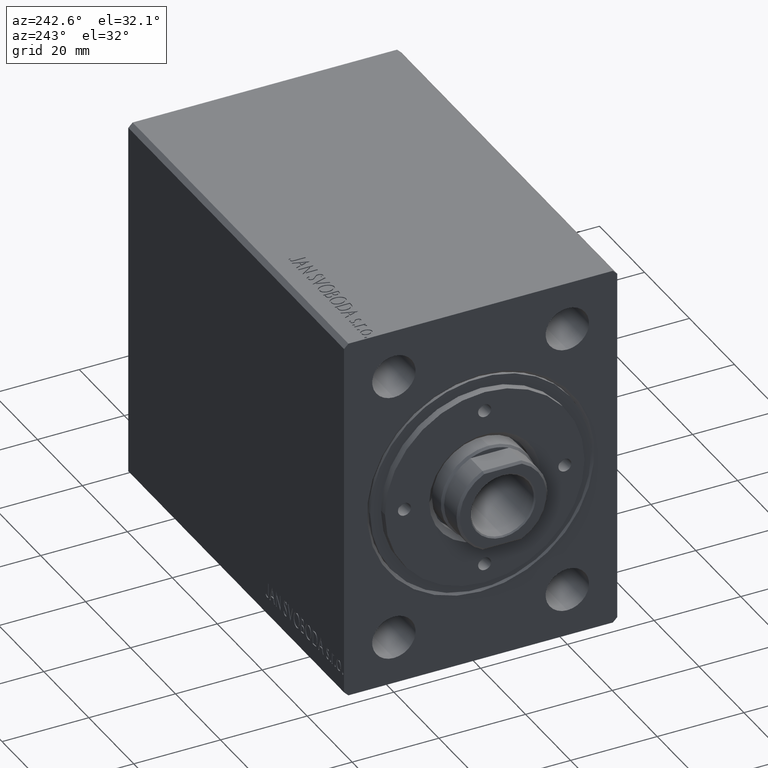
[diagram: clean part render]
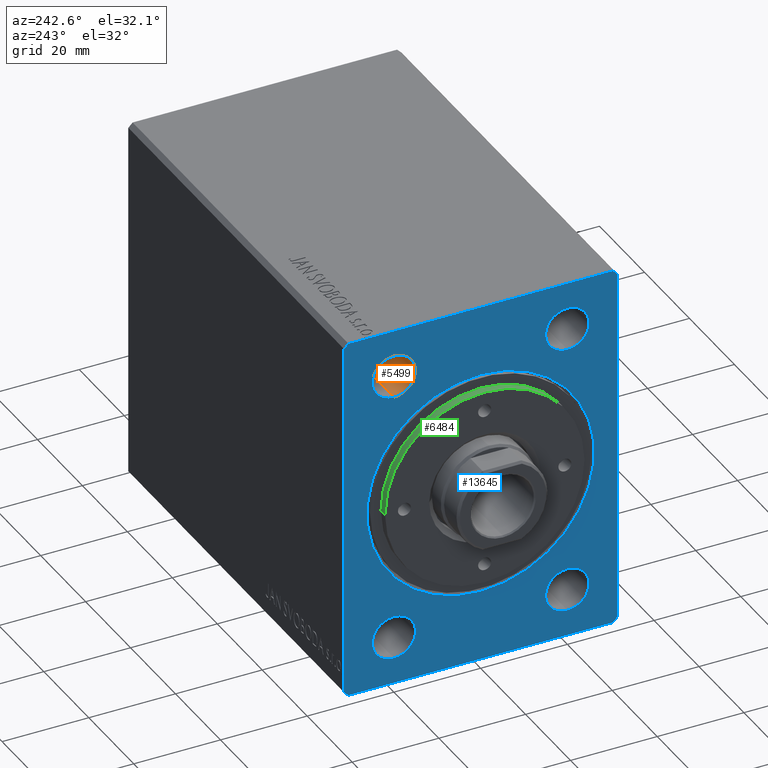
[diagram: same view with three faces highlighted in distinct colors, each labeled with its STEP entity id]
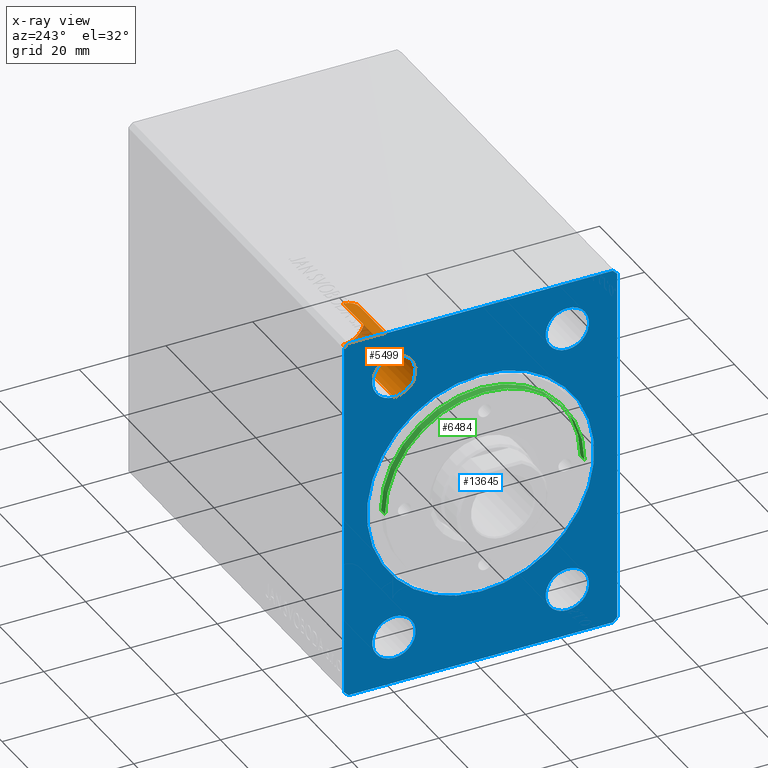
[diagram: x-ray of the same camera — body ghosted, the three highlighted faces saturated]
A machine part, auxiliary view with three faces highlighted in distinct colors.
The next image is the same camera in x-ray (body ghosted, the three faces saturated) — at least one of them is partly hidden behind the body in this view.
Their STEP definitions:

[orange] entity #5499 — the highlighted cylindrical surface (edge-blend (fillet) strip) has radius 5 mm, axis along (-1, -0, -0).
#1872 = EDGE_CURVE ( 'NONE', #37305, #3711, #41572, .T. ) ;
#2341 = EDGE_LOOP ( 'NONE', ( #42900, #39716, #16521, #27777 ) ) ;
#2380 = EDGE_CURVE ( 'NONE', #3711, #30821, #32694, .T. ) ;
#3711 = VERTEX_POINT ( 'NONE', #30739 ) ;
#5499 = ADVANCED_FACE ( 'NONE', ( #16178 ), #33328, .F. ) ;
#7325 = LINE ( 'NONE', #40727, #35598 ) ;
#8535 = DIRECTION ( 'NONE',  ( 0.000000000000000000, 0.000000000000000000, 1.000000000000000000 ) ) ;
#9941 = DIRECTION ( 'NONE',  ( 0.000000000000000000, 0.000000000000000000, 1.000000000000000000 ) ) ;
#11769 = CARTESIAN_POINT ( 'NONE',  ( 0.000000000000000000, 19.99999999999999645, 36.50000000000000000 ) ) ;
#11876 = CARTESIAN_POINT ( 'NONE',  ( 22.67000000000000171, 19.99999999999999645, 31.50000000000000000 ) ) ;
#12832 = DIRECTION ( 'NONE',  ( -1.000000000000000000, -0.000000000000000000, -0.000000000000000000 ) ) ;
#15894 = EDGE_CURVE ( 'NONE', #37305, #31997, #7325, .T. ) ;
#16178 = FACE_OUTER_BOUND ( 'NONE', #2341, .T. ) ;
#16521 = ORIENTED_EDGE ( 'NONE', *, *, #32907, .T. ) ;
#16629 = DIRECTION ( 'NONE',  ( 0.000000000000000000, 0.000000000000000000, 1.000000000000000000 ) ) ;
#17854 = CARTESIAN_POINT ( 'NONE',  ( 1.224646799147350495E-16, 19.99999999999999645, 36.50000000000000000 ) ) ;
#18898 = AXIS2_PLACEMENT_3D ( 'NONE', #19298, #12832, #9941 ) ;
#19298 = CARTESIAN_POINT ( 'NONE',  ( 0.000000000000000000, 19.99999999999999645, 31.50000000000000000 ) ) ;
#21799 = DIRECTION ( 'NONE',  ( -1.000000000000000000, -0.000000000000000000, -0.000000000000000000 ) ) ;
#22518 = AXIS2_PLACEMENT_3D ( 'NONE', #35592, #42509, #16629 ) ;
#25576 = CARTESIAN_POINT ( 'NONE',  ( 22.67000000000000171, 19.99999999999999645, 26.50000000000000711 ) ) ;
#25674 = DIRECTION ( 'NONE',  ( -1.000000000000000000, -0.000000000000000000, -0.000000000000000000 ) ) ;
#27371 = DIRECTION ( 'NONE',  ( -1.000000000000000000, -0.000000000000000000, -0.000000000000000000 ) ) ;
#27777 = ORIENTED_EDGE ( 'NONE', *, *, #2380, .F. ) ;
#30739 = CARTESIAN_POINT ( 'NONE',  ( 22.67000000000000171, 19.99999999999999645, 36.49999999999999289 ) ) ;
#30821 = VERTEX_POINT ( 'NONE', #17854 ) ;
#31997 = VERTEX_POINT ( 'NONE', #36274 ) ;
#32694 = LINE ( 'NONE', #11769, #35176 ) ;
#32907 = EDGE_CURVE ( 'NONE', #31997, #30821, #38184, .T. ) ;
#33328 = CYLINDRICAL_SURFACE ( 'NONE', #18898, 4.999999999999997335 ) ;
#35176 = VECTOR ( 'NONE', #21799, 1000.000000000000000 ) ;
#35592 = CARTESIAN_POINT ( 'NONE',  ( 1.224646799147350495E-16, 19.99999999999999645, 31.50000000000000000 ) ) ;
#35598 = VECTOR ( 'NONE', #27371, 1000.000000000000000 ) ;
#36274 = CARTESIAN_POINT ( 'NONE',  ( 1.224646799147350495E-16, 19.99999999999999645, 26.50000000000000355 ) ) ;
#37305 = VERTEX_POINT ( 'NONE', #25576 ) ;
#38184 = CIRCLE ( 'NONE', #22518, 4.999999999999997335 ) ;
#39716 = ORIENTED_EDGE ( 'NONE', *, *, #15894, .T. ) ;
#40727 = CARTESIAN_POINT ( 'NONE',  ( 0.000000000000000000, 19.99999999999999645, 26.50000000000000355 ) ) ;
#41538 = AXIS2_PLACEMENT_3D ( 'NONE', #11876, #25674, #8535 ) ;
#41572 = CIRCLE ( 'NONE', #41538, 4.999999999999990230 ) ;
#42509 = DIRECTION ( 'NONE',  ( -1.000000000000000000, -0.000000000000000000, -0.000000000000000000 ) ) ;
#42900 = ORIENTED_EDGE ( 'NONE', *, *, #1872, .F. ) ;

[blue] entity #13645 — the highlighted planar face has unit normal (1, 0, 0).
#4 = AXIS2_PLACEMENT_3D ( 'NONE', #10274, #24746, #7818 ) ;
#1179 = DIRECTION ( 'NONE',  ( 0.000000000000000000, -0.7071067811865462405, -0.7071067811865489050 ) ) ;
#1275 = FACE_BOUND ( 'NONE', #28720, .T. ) ;
#1793 = AXIS2_PLACEMENT_3D ( 'NONE', #25678, #18346, #12307 ) ;
#1819 = CIRCLE ( 'NONE', #24551, 4.999999999999997335 ) ;
#2000 = LINE ( 'NONE', #15567, #33064 ) ;
#2306 = CARTESIAN_POINT ( 'NONE',  ( 0.000000000000000000, -31.50000000000000000, 41.49999999999999289 ) ) ;
#2886 = VERTEX_POINT ( 'NONE', #30677 ) ;
#3170 = VERTEX_POINT ( 'NONE', #30422 ) ;
#3444 = CARTESIAN_POINT ( 'NONE',  ( 0.000000000000000000, 31.50000000000001421, 41.49999999999999289 ) ) ;
#4254 = VECTOR ( 'NONE', #25276, 1000.000000000000114 ) ;
#4614 = CARTESIAN_POINT ( 'NONE',  ( 1.224646799147350495E-16, 19.99999999999999645, -36.50000000000000000 ) ) ;
#4648 = ORIENTED_EDGE ( 'NONE', *, *, #31229, .F. ) ;
#4710 = AXIS2_PLACEMENT_3D ( 'NONE', #38193, #34406, #17249 ) ;
#5972 = CARTESIAN_POINT ( 'NONE',  ( 0.000000000000000000, 31.50000000000001421, -41.50000000000000711 ) ) ;
#6086 = CARTESIAN_POINT ( 'NONE',  ( 1.224646799147350495E-16, -20.00000000000000355, -26.50000000000000355 ) ) ;
#6620 = EDGE_LOOP ( 'NONE', ( #40794, #13366 ) ) ;
#6777 = CIRCLE ( 'NONE', #38789, 4.999999999999997335 ) ;
#6797 = DIRECTION ( 'NONE',  ( 0.000000000000000000, 0.000000000000000000, 1.000000000000000000 ) ) ;
#6902 = CIRCLE ( 'NONE', #38914, 4.999999999999997335 ) ;
#7305 = CARTESIAN_POINT ( 'NONE',  ( 0.000000000000000000, -31.50000000000000000, -41.50000000000000711 ) ) ;
#7455 = LINE ( 'NONE', #3444, #24978 ) ;
#7481 = EDGE_CURVE ( 'NONE', #30821, #31997, #23918, .T. ) ;
#7516 = EDGE_CURVE ( 'NONE', #35286, #13450, #32156, .T. ) ;
#7546 = CARTESIAN_POINT ( 'NONE',  ( 1.224646799147350495E-16, -20.00000000000000355, 36.50000000000000000 ) ) ;
#7563 = EDGE_LOOP ( 'NONE', ( #23214, #38428 ) ) ;
#7696 = EDGE_CURVE ( 'NONE', #14012, #39554, #2000, .T. ) ;
#7818 = DIRECTION ( 'NONE',  ( 0.000000000000000000, 0.000000000000000000, 1.000000000000000000 ) ) ;
#8258 = CARTESIAN_POINT ( 'NONE',  ( 0.000000000000000000, -30.50000000000000711, -42.50000000000000711 ) ) ;
#8675 = EDGE_CURVE ( 'NONE', #38950, #3170, #6777, .T. ) ;
#9119 = EDGE_CURVE ( 'NONE', #27273, #15913, #1819, .T. ) ;
#9395 = DIRECTION ( 'NONE',  ( 1.000000000000000000, 0.000000000000000000, 0.000000000000000000 ) ) ;
#9485 = DIRECTION ( 'NONE',  ( 1.000000000000000000, 0.000000000000000000, 0.000000000000000000 ) ) ;
#9934 = CARTESIAN_POINT ( 'NONE',  ( 0.000000000000000000, -31.50000000000000000, -41.50000000000000711 ) ) ;
#10226 = VERTEX_POINT ( 'NONE', #4614 ) ;
#10274 = CARTESIAN_POINT ( 'NONE',  ( 1.224646799147350495E-16, 19.99999999999999645, -31.50000000000000000 ) ) ;
#10345 = ORIENTED_EDGE ( 'NONE', *, *, #11608, .F. ) ;
#10496 = LINE ( 'NONE', #11155, #22600 ) ;
#10907 = CARTESIAN_POINT ( 'NONE',  ( 0.000000000000000000, 31.50000000000001421, 41.49999999999999289 ) ) ;
#11038 = CARTESIAN_POINT ( 'NONE',  ( 0.000000000000000000, 31.50000000000001421, -41.50000000000000711 ) ) ;
#11155 = CARTESIAN_POINT ( 'NONE',  ( 0.000000000000000000, -30.50000000000000711, -42.50000000000000711 ) ) ;
#11577 = CARTESIAN_POINT ( 'NONE',  ( 0.000000000000000000, -30.50000000000000355, 42.49999999999999289 ) ) ;
#11608 = EDGE_CURVE ( 'NONE', #15811, #35286, #10496, .T. ) ;
#12008 = CARTESIAN_POINT ( 'NONE',  ( 0.000000000000000000, 0.000000000000000000, 26.20000000000001350 ) ) ;
#12307 = DIRECTION ( 'NONE',  ( 0.000000000000000000, 0.000000000000000000, 1.000000000000000000 ) ) ;
#12329 = LINE ( 'NONE', #2306, #31127 ) ;
#12626 = CARTESIAN_POINT ( 'NONE',  ( 1.224646799147350495E-16, -20.00000000000000355, 31.50000000000000000 ) ) ;
#12997 = VECTOR ( 'NONE', #1179, 999.9999999999998863 ) ;
#13040 = DIRECTION ( 'NONE',  ( 1.000000000000000000, 0.000000000000000000, 0.000000000000000000 ) ) ;
#13244 = VERTEX_POINT ( 'NONE', #10907 ) ;
#13366 = ORIENTED_EDGE ( 'NONE', *, *, #32907, .F. ) ;
#13450 = VERTEX_POINT ( 'NONE', #5972 ) ;
#13474 = DIRECTION ( 'NONE',  ( 0.000000000000000000, 0.000000000000000000, -1.000000000000000000 ) ) ;
#13518 = CIRCLE ( 'NONE', #4, 4.999999999999997335 ) ;
#13645 = ADVANCED_FACE ( 'NONE', ( #18196, #1275, #31797, #25102, #15715, #32661 ), #19511, .F. ) ;
#13922 = CARTESIAN_POINT ( 'NONE',  ( 0.000000000000000000, 0.000000000000000000, 0.000000000000000000 ) ) ;
#14012 = VERTEX_POINT ( 'NONE', #22742 ) ;
#14851 = EDGE_CURVE ( 'NONE', #27622, #15811, #40448, .T. ) ;
#14987 = ORIENTED_EDGE ( 'NONE', *, *, #42242, .F. ) ;
#15567 = CARTESIAN_POINT ( 'NONE',  ( 0.000000000000000000, 30.50000000000001421, 42.49999999999999289 ) ) ;
#15655 = EDGE_CURVE ( 'NONE', #2886, #10226, #13518, .T. ) ;
#15715 = FACE_BOUND ( 'NONE', #37195, .T. ) ;
#15811 = VERTEX_POINT ( 'NONE', #8258 ) ;
#15913 = VERTEX_POINT ( 'NONE', #7546 ) ;
#15981 = ORIENTED_EDGE ( 'NONE', *, *, #7516, .F. ) ;
#16629 = DIRECTION ( 'NONE',  ( 0.000000000000000000, 0.000000000000000000, 1.000000000000000000 ) ) ;
#17249 = DIRECTION ( 'NONE',  ( 0.000000000000000000, 0.000000000000000000, 1.000000000000000000 ) ) ;
#17659 = LINE ( 'NONE', #31251, #12997 ) ;
#17854 = CARTESIAN_POINT ( 'NONE',  ( 1.224646799147350495E-16, 19.99999999999999645, 36.50000000000000000 ) ) ;
#18196 = FACE_BOUND ( 'NONE', #6620, .T. ) ;
#18242 = EDGE_CURVE ( 'NONE', #13244, #14012, #7455, .T. ) ;
#18346 = DIRECTION ( 'NONE',  ( -1.000000000000000000, -0.000000000000000000, -0.000000000000000000 ) ) ;
#18367 = DIRECTION ( 'NONE',  ( 0.000000000000000000, 0.000000000000000000, 1.000000000000000000 ) ) ;
#19511 = PLANE ( 'NONE',  #41159 ) ;
#20587 = EDGE_CURVE ( 'NONE', #31563, #27267, #23605, .T. ) ;
#20985 = VECTOR ( 'NONE', #42176, 999.9999999999998863 ) ;
#21088 = CIRCLE ( 'NONE', #4710, 4.999999999999997335 ) ;
#21354 = EDGE_CURVE ( 'NONE', #15913, #27273, #22835, .T. ) ;
#21454 = VERTEX_POINT ( 'NONE', #29131 ) ;
#21469 = AXIS2_PLACEMENT_3D ( 'NONE', #33000, #9395, #22975 ) ;
#21627 = AXIS2_PLACEMENT_3D ( 'NONE', #13922, #9485, #13474 ) ;
#22367 = DIRECTION ( 'NONE',  ( -1.000000000000000000, -0.000000000000000000, -0.000000000000000000 ) ) ;
#22442 = DIRECTION ( 'NONE',  ( -1.000000000000000000, -0.000000000000000000, -0.000000000000000000 ) ) ;
#22518 = AXIS2_PLACEMENT_3D ( 'NONE', #35592, #42509, #16629 ) ;
#22600 = VECTOR ( 'NONE', #34092, 1000.000000000000000 ) ;
#22742 = CARTESIAN_POINT ( 'NONE',  ( 0.000000000000000000, 30.50000000000001421, 42.49999999999999289 ) ) ;
#22835 = CIRCLE ( 'NONE', #28549, 4.999999999999997335 ) ;
#22975 = DIRECTION ( 'NONE',  ( 0.000000000000000000, 0.000000000000000000, -1.000000000000000000 ) ) ;
#23214 = ORIENTED_EDGE ( 'NONE', *, *, #15655, .F. ) ;
#23386 = ORIENTED_EDGE ( 'NONE', *, *, #9119, .F. ) ;
#23549 = ORIENTED_EDGE ( 'NONE', *, *, #40160, .F. ) ;
#23605 = CIRCLE ( 'NONE', #21469, 26.20000000000001350 ) ;
#23918 = CIRCLE ( 'NONE', #1793, 4.999999999999997335 ) ;
#24154 = DIRECTION ( 'NONE',  ( 0.000000000000000000, -0.7071067811865474617, 0.7071067811865474617 ) ) ;
#24551 = AXIS2_PLACEMENT_3D ( 'NONE', #28623, #22367, #18367 ) ;
#24746 = DIRECTION ( 'NONE',  ( -1.000000000000000000, -0.000000000000000000, -0.000000000000000000 ) ) ;
#24978 = VECTOR ( 'NONE', #24154, 1000.000000000000114 ) ;
#25102 = FACE_BOUND ( 'NONE', #31539, .T. ) ;
#25276 = DIRECTION ( 'NONE',  ( 0.000000000000000000, 0.7071067811865451302, -0.7071067811865500152 ) ) ;
#25678 = CARTESIAN_POINT ( 'NONE',  ( 1.224646799147350495E-16, 19.99999999999999645, 31.50000000000000000 ) ) ;
#25977 = EDGE_CURVE ( 'NONE', #27267, #31563, #32996, .T. ) ;
#26196 = DIRECTION ( 'NONE',  ( 0.000000000000000000, 0.000000000000000000, -1.000000000000000000 ) ) ;
#26215 = DIRECTION ( 'NONE',  ( 0.000000000000000000, 0.000000000000000000, 1.000000000000000000 ) ) ;
#26578 = DIRECTION ( 'NONE',  ( 0.000000000000000000, 0.000000000000000000, -1.000000000000000000 ) ) ;
#27055 = ORIENTED_EDGE ( 'NONE', *, *, #8675, .F. ) ;
#27267 = VERTEX_POINT ( 'NONE', #12008 ) ;
#27273 = VERTEX_POINT ( 'NONE', #32928 ) ;
#27622 = VERTEX_POINT ( 'NONE', #7305 ) ;
#27957 = DIRECTION ( 'NONE',  ( -1.000000000000000000, -0.000000000000000000, -0.000000000000000000 ) ) ;
#28384 = ORIENTED_EDGE ( 'NONE', *, *, #20587, .T. ) ;
#28549 = AXIS2_PLACEMENT_3D ( 'NONE', #12626, #22442, #26215 ) ;
#28596 = CARTESIAN_POINT ( 'NONE',  ( 0.000000000000000000, 30.50000000000001776, -42.50000000000000711 ) ) ;
#28623 = CARTESIAN_POINT ( 'NONE',  ( 1.224646799147350495E-16, -20.00000000000000355, 31.50000000000000000 ) ) ;
#28720 = EDGE_LOOP ( 'NONE', ( #27055, #4648 ) ) ;
#29131 = CARTESIAN_POINT ( 'NONE',  ( 0.000000000000000000, -31.50000000000000000, 41.49999999999999289 ) ) ;
#29177 = DIRECTION ( 'NONE',  ( 0.000000000000000000, -1.000000000000000000, 0.000000000000000000 ) ) ;
#30422 = CARTESIAN_POINT ( 'NONE',  ( 1.224646799147350495E-16, -20.00000000000000355, -36.50000000000000000 ) ) ;
#30612 = ORIENTED_EDGE ( 'NONE', *, *, #14851, .F. ) ;
#30677 = CARTESIAN_POINT ( 'NONE',  ( 1.224646799147350495E-16, 19.99999999999999645, -26.50000000000000355 ) ) ;
#30821 = VERTEX_POINT ( 'NONE', #17854 ) ;
#31127 = VECTOR ( 'NONE', #26578, 1000.000000000000000 ) ;
#31229 = EDGE_CURVE ( 'NONE', #3170, #38950, #21088, .T. ) ;
#31251 = CARTESIAN_POINT ( 'NONE',  ( 0.000000000000000000, -30.50000000000000355, 42.49999999999999289 ) ) ;
#31539 = EDGE_LOOP ( 'NONE', ( #37624, #23386 ) ) ;
#31563 = VERTEX_POINT ( 'NONE', #32560 ) ;
#31797 = FACE_BOUND ( 'NONE', #7563, .T. ) ;
#31997 = VERTEX_POINT ( 'NONE', #36274 ) ;
#32156 = LINE ( 'NONE', #28596, #20985 ) ;
#32560 = CARTESIAN_POINT ( 'NONE',  ( 0.000000000000000000, 3.208574613766067271E-15, -26.20000000000001350 ) ) ;
#32661 = FACE_OUTER_BOUND ( 'NONE', #34509, .T. ) ;
#32907 = EDGE_CURVE ( 'NONE', #31997, #30821, #38184, .T. ) ;
#32928 = CARTESIAN_POINT ( 'NONE',  ( 1.224646799147350495E-16, -20.00000000000000355, 26.50000000000000355 ) ) ;
#32996 = CIRCLE ( 'NONE', #21627, 26.20000000000001350 ) ;
#33000 = CARTESIAN_POINT ( 'NONE',  ( 0.000000000000000000, 0.000000000000000000, 0.000000000000000000 ) ) ;
#33064 = VECTOR ( 'NONE', #29177, 1000.000000000000000 ) ;
#34092 = DIRECTION ( 'NONE',  ( 0.000000000000000000, 1.000000000000000000, 0.000000000000000000 ) ) ;
#34406 = DIRECTION ( 'NONE',  ( -1.000000000000000000, -0.000000000000000000, -0.000000000000000000 ) ) ;
#34509 = EDGE_LOOP ( 'NONE', ( #42404, #14987, #15981, #10345, #30612, #35706, #23549, #37789 ) ) ;
#35286 = VERTEX_POINT ( 'NONE', #36945 ) ;
#35564 = DIRECTION ( 'NONE',  ( -1.000000000000000000, -0.000000000000000000, -0.000000000000000000 ) ) ;
#35592 = CARTESIAN_POINT ( 'NONE',  ( 1.224646799147350495E-16, 19.99999999999999645, 31.50000000000000000 ) ) ;
#35706 = ORIENTED_EDGE ( 'NONE', *, *, #38965, .F. ) ;
#36009 = DIRECTION ( 'NONE',  ( 0.000000000000000000, 0.000000000000000000, 1.000000000000000000 ) ) ;
#36274 = CARTESIAN_POINT ( 'NONE',  ( 1.224646799147350495E-16, 19.99999999999999645, 26.50000000000000355 ) ) ;
#36945 = CARTESIAN_POINT ( 'NONE',  ( 0.000000000000000000, 30.50000000000001776, -42.50000000000000711 ) ) ;
#37195 = EDGE_LOOP ( 'NONE', ( #40267, #28384 ) ) ;
#37624 = ORIENTED_EDGE ( 'NONE', *, *, #21354, .F. ) ;
#37742 = CARTESIAN_POINT ( 'NONE',  ( 1.224646799147350495E-16, 19.99999999999999645, -31.50000000000000000 ) ) ;
#37789 = ORIENTED_EDGE ( 'NONE', *, *, #7696, .F. ) ;
#37938 = EDGE_CURVE ( 'NONE', #10226, #2886, #6902, .T. ) ;
#38184 = CIRCLE ( 'NONE', #22518, 4.999999999999997335 ) ;
#38193 = CARTESIAN_POINT ( 'NONE',  ( 1.224646799147350495E-16, -20.00000000000000355, -31.50000000000000000 ) ) ;
#38419 = DIRECTION ( 'NONE',  ( 0.000000000000000000, 0.000000000000000000, 1.000000000000000000 ) ) ;
#38428 = ORIENTED_EDGE ( 'NONE', *, *, #37938, .F. ) ;
#38789 = AXIS2_PLACEMENT_3D ( 'NONE', #39126, #35564, #36009 ) ;
#38914 = AXIS2_PLACEMENT_3D ( 'NONE', #37742, #27957, #6797 ) ;
#38950 = VERTEX_POINT ( 'NONE', #6086 ) ;
#38965 = EDGE_CURVE ( 'NONE', #21454, #27622, #12329, .T. ) ;
#39126 = CARTESIAN_POINT ( 'NONE',  ( 1.224646799147350495E-16, -20.00000000000000355, -31.50000000000000000 ) ) ;
#39554 = VERTEX_POINT ( 'NONE', #11577 ) ;
#39788 = CARTESIAN_POINT ( 'NONE',  ( 0.000000000000000000, 0.000000000000000000, 0.000000000000000000 ) ) ;
#40160 = EDGE_CURVE ( 'NONE', #39554, #21454, #17659, .T. ) ;
#40267 = ORIENTED_EDGE ( 'NONE', *, *, #25977, .T. ) ;
#40448 = LINE ( 'NONE', #9934, #4254 ) ;
#40794 = ORIENTED_EDGE ( 'NONE', *, *, #7481, .F. ) ;
#41159 = AXIS2_PLACEMENT_3D ( 'NONE', #39788, #13040, #26196 ) ;
#41407 = VECTOR ( 'NONE', #38419, 1000.000000000000000 ) ;
#41552 = LINE ( 'NONE', #11038, #41407 ) ;
#42176 = DIRECTION ( 'NONE',  ( 0.000000000000000000, 0.7071067811865462405, 0.7071067811865489050 ) ) ;
#42242 = EDGE_CURVE ( 'NONE', #13450, #13244, #41552, .T. ) ;
#42404 = ORIENTED_EDGE ( 'NONE', *, *, #18242, .F. ) ;
#42509 = DIRECTION ( 'NONE',  ( -1.000000000000000000, -0.000000000000000000, -0.000000000000000000 ) ) ;

[green] entity #6484 — the highlighted cylindrical surface (partial cylindrical patch) has radius 23 mm, axis along (1, -0, 0).
#1001 = AXIS2_PLACEMENT_3D ( 'NONE', #20796, #10117, #34381 ) ;
#1634 = EDGE_CURVE ( 'NONE', #10990, #42243, #30193, .T. ) ;
#2205 = VECTOR ( 'NONE', #6522, 1000.000000000000000 ) ;
#2700 = DIRECTION ( 'NONE',  ( -0.000000000000000000, -0.000000000000000000, -1.000000000000000000 ) ) ;
#3990 = AXIS2_PLACEMENT_3D ( 'NONE', #20577, #31490, #27042 ) ;
#6484 = ADVANCED_FACE ( 'NONE', ( #7002 ), #10333, .T. ) ;
#6522 = DIRECTION ( 'NONE',  ( -0.000000000000000000, -0.000000000000000000, -1.000000000000000000 ) ) ;
#7002 = FACE_OUTER_BOUND ( 'NONE', #42775, .T. ) ;
#9598 = CARTESIAN_POINT ( 'NONE',  ( -23.00000000000000000, 0.000000000000000000, 72.79999999999998295 ) ) ;
#10117 = DIRECTION ( 'NONE',  ( 0.000000000000000000, 0.000000000000000000, 1.000000000000000000 ) ) ;
#10183 = VERTEX_POINT ( 'NONE', #34240 ) ;
#10333 = CYLINDRICAL_SURFACE ( 'NONE', #3990, 23.00000000000000000 ) ;
#10990 = VERTEX_POINT ( 'NONE', #24510 ) ;
#14097 = DIRECTION ( 'NONE',  ( 0.000000000000000000, 0.000000000000000000, 1.000000000000000000 ) ) ;
#18311 = VECTOR ( 'NONE', #2700, 1000.000000000000000 ) ;
#18372 = EDGE_CURVE ( 'NONE', #10183, #42243, #37255, .T. ) ;
#19181 = LINE ( 'NONE', #9598, #18311 ) ;
#20535 = ORIENTED_EDGE ( 'NONE', *, *, #1634, .T. ) ;
#20577 = CARTESIAN_POINT ( 'NONE',  ( 0.000000000000000000, 0.000000000000000000, 72.79999999999998295 ) ) ;
#20796 = CARTESIAN_POINT ( 'NONE',  ( 0.000000000000000000, 0.000000000000000000, 71.00000000000000000 ) ) ;
#22709 = EDGE_CURVE ( 'NONE', #38073, #10183, #37841, .T. ) ;
#24349 = DIRECTION ( 'NONE',  ( 1.000000000000000000, 0.000000000000000000, 0.000000000000000000 ) ) ;
#24510 = CARTESIAN_POINT ( 'NONE',  ( -23.00000000000000000, 0.000000000000000000, 71.00000000000000000 ) ) ;
#26962 = ORIENTED_EDGE ( 'NONE', *, *, #39376, .T. ) ;
#27042 = DIRECTION ( 'NONE',  ( -1.000000000000000000, 0.000000000000000000, 0.000000000000000000 ) ) ;
#27918 = CARTESIAN_POINT ( 'NONE',  ( 0.000000000000000000, 0.000000000000000000, 72.79999999999998295 ) ) ;
#30193 = CIRCLE ( 'NONE', #1001, 23.00000000000000000 ) ;
#31490 = DIRECTION ( 'NONE',  ( -0.000000000000000000, -0.000000000000000000, -1.000000000000000000 ) ) ;
#34240 = CARTESIAN_POINT ( 'NONE',  ( 23.00000000000000000, 2.816687638038912352E-15, 72.79999999999998295 ) ) ;
#34381 = DIRECTION ( 'NONE',  ( 1.000000000000000000, 0.000000000000000000, 0.000000000000000000 ) ) ;
#35524 = CARTESIAN_POINT ( 'NONE',  ( 23.00000000000000000, 2.816687638038912352E-15, 71.00000000000000000 ) ) ;
#35689 = AXIS2_PLACEMENT_3D ( 'NONE', #27918, #14097, #24349 ) ;
#36809 = ORIENTED_EDGE ( 'NONE', *, *, #18372, .F. ) ;
#37032 = CARTESIAN_POINT ( 'NONE',  ( 23.00000000000000000, 2.816687638038912352E-15, 72.79999999999998295 ) ) ;
#37255 = LINE ( 'NONE', #37032, #2205 ) ;
#37829 = ORIENTED_EDGE ( 'NONE', *, *, #22709, .F. ) ;
#37841 = CIRCLE ( 'NONE', #35689, 23.00000000000000000 ) ;
#38073 = VERTEX_POINT ( 'NONE', #43286 ) ;
#39376 = EDGE_CURVE ( 'NONE', #38073, #10990, #19181, .T. ) ;
#42243 = VERTEX_POINT ( 'NONE', #35524 ) ;
#42775 = EDGE_LOOP ( 'NONE', ( #36809, #37829, #26962, #20535 ) ) ;
#43286 = CARTESIAN_POINT ( 'NONE',  ( -23.00000000000000000, 0.000000000000000000, 72.79999999999998295 ) ) ;